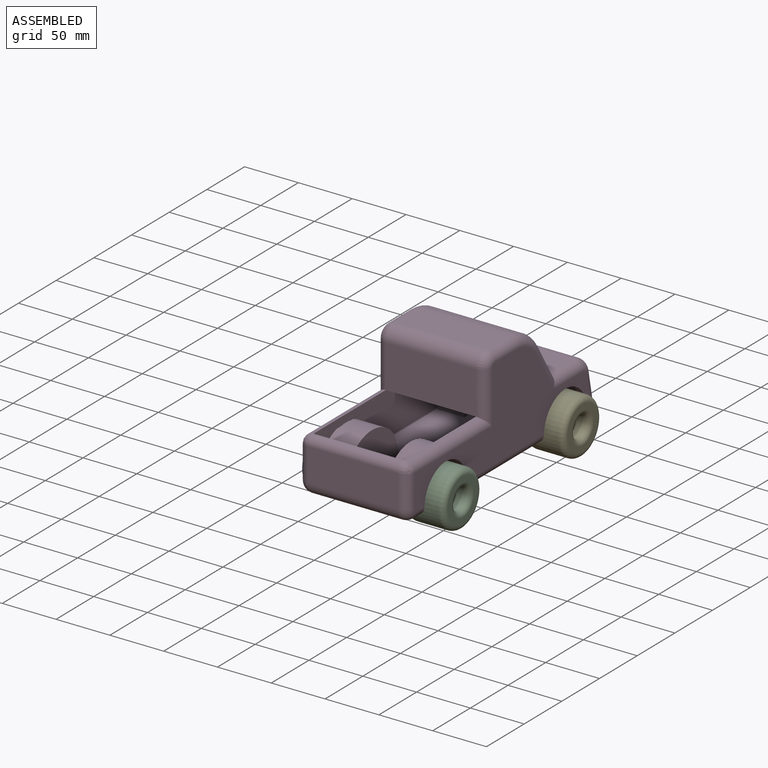
[diagram: assembled view]
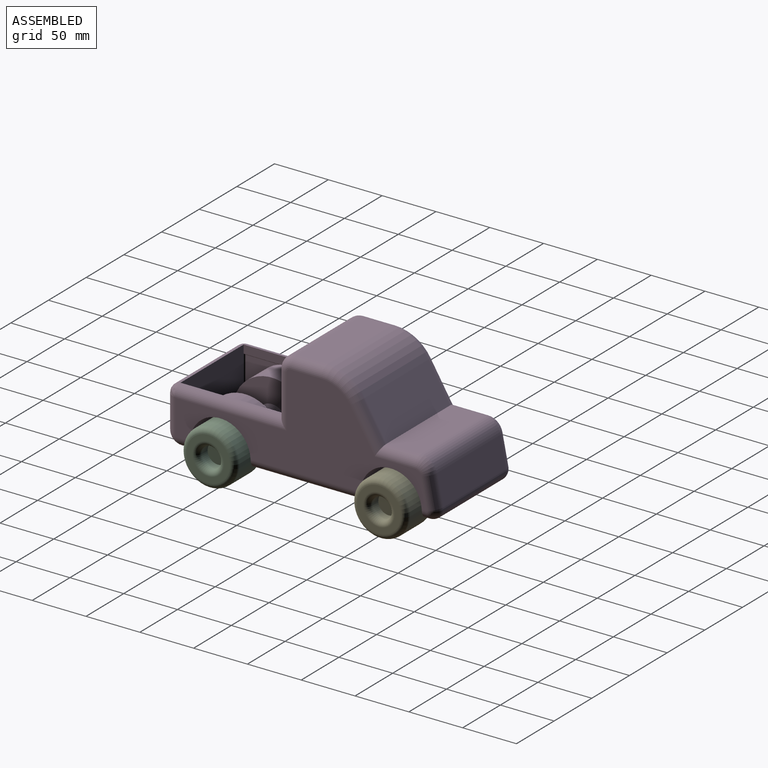
[diagram: assembled view, second angle]
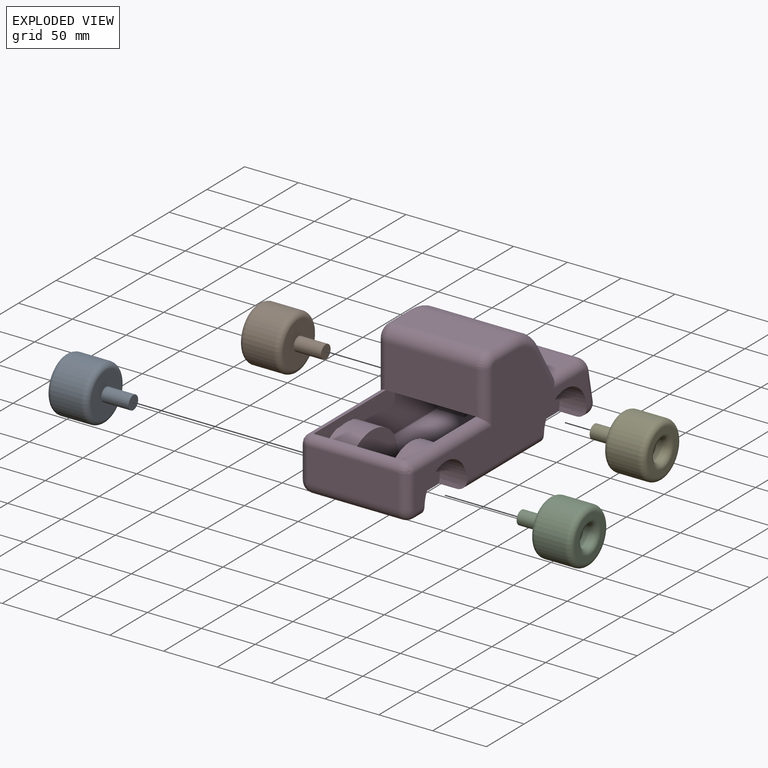
[diagram: exploded view]
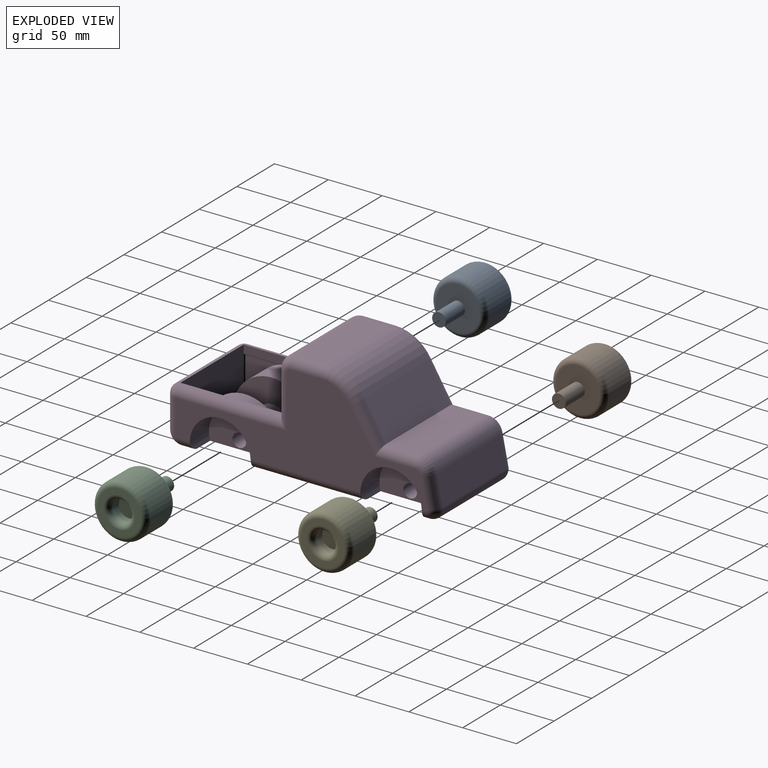
[diagram: exploded view, second angle]
ASSEMBLY  parts=5 mates=4
PART A: 10 faces, bbox 63.5x55x55 mm
  f0: cylinder r=6.35mm len=25.4mm, axis (-1,0,0), area 1013.4mm2, adj f1,f4
  f1: plane 12.7x12.7mm, normal (-1,0,0), area 126.7mm2, adj f0
  f2: cylinder r=25.4mm len=50.8mm, axis (-1,0,0), area 4459mm2, adj f8,f9
  f3: plane 40.64x40.64mm, normal (1,0,0), area 627.1mm2, adj f7,f9
  f4: plane 40.64x40.64mm, normal (-1,0,0), area 1170.5mm2, adj f0,f8
  f5: cylinder r=9.53mm len=19.05mm, axis (1,0,0), area 456mm2, adj f6,f7
  f6: plane 19.05x19.05mm, normal (1,0,0), area 285mm2, adj f5
  f7: torus R=14.61mm, axis (1,0,0), area 570.1mm2, adj f3,f5
  f8: torus R=20.32mm, axis (1,0,0), area 1180.9mm2, adj f2,f4
  f9: torus R=20.32mm, axis (1,0,0), area 1180.9mm2, adj f2,f3
PART B: same geometry as A
PART C: same geometry as A
PART D: 126 faces, bbox 101.6x251.9x106.5 mm
  f0: plane 234.13x85.37mm, normal (-1,0,0), area 8596.9mm2, adj f20,f22,f25,f26,f27,f29,f30,f31
  f1: cylinder r=40.13mm len=83.82mm, axis (-1,0,0), area 3441.9mm2, adj f2,f13,f33,f48
  f2: plane 83.82x29.03mm, normal (0,0,1), area 2433.6mm2, adj f1,f3,f32,f47
  f3: cylinder r=12.28mm len=83.82mm, axis (-1,0,0), area 1617.1mm2, adj f2,f4,f31,f46
  f4: plane 83.82x40.06mm, normal (0,-1,0), area 3358.1mm2, adj f3,f30,f45,f83
  f5: cylinder r=7.7mm len=83.82mm, axis (-1,0,0), area 1014.3mm2, adj f6,f28,f43,f76
  f6: plane 83.82x30.81mm, normal (0,-1,0), area 2582.8mm2, adj f5,f7,f27,f42
  f7: cylinder r=12.28mm len=83.82mm, axis (-1,0,0), area 1617.1mm2, adj f6,f8,f26,f41
  f8: plane 230.21x83.82mm, normal (0,0,-1), area 15669.6mm2, adj f7,f9,f15,f16,f17,f18,f19,f20
  f9: cylinder r=9.41mm len=83.82mm, axis (-1,0,0), area 1396.9mm2, adj f8,f10,f38,f53
  f10: plane 83.82x27.51mm, normal (0,0.98,0.2), area 2352.1mm2, adj f9,f11,f37,f52
  f11: cylinder r=14.98mm len=83.82mm, axis (-1,0,0), area 1722.4mm2, adj f10,f12,f36,f51
  f12: plane 83.82x32.24mm, normal (0,0,1), area 2702.5mm2, adj f11,f13,f35,f50
  f13: plane 83.82x33.11mm, normal (0,0.85,0.52), area 3250.5mm2, adj f1,f12,f34,f49
  f14: plane 234.13x85.37mm, normal (1,0,0), area 8624.5mm2, adj f16,f18,f40,f41,f42,f44,f45,f46
  f15: plane 57.15x36.2mm, normal (1,0,0), area 1586.2mm2, adj f8,f16,f23
  f16: cylinder r=28.57mm len=57.15mm, axis (1,0,0), area 2637.4mm2, adj f8,f14,f15,f54,f56
  f17: plane 56.52x35.88mm, normal (1,0,0), area 1552.9mm2, adj f8,f18,f24
  f18: cylinder r=28.26mm len=56.52mm, axis (1,0,0), area 2612.1mm2, adj f8,f14,f17,f40,f56
  f19: plane 57.15x36.2mm, normal (-1,0,0), area 1586.2mm2, adj f8,f20,f23
  f20: cylinder r=28.57mm len=57.15mm, axis (-1,0,0), area 2637.4mm2, adj f0,f8,f19,f39,f55
  f21: plane 57.15x36.2mm, normal (-1,0,0), area 1586.2mm2, adj f8,f22,f24
  f22: cylinder r=28.57mm len=57.15mm, axis (-1,0,0), area 2637.4mm2, adj f0,f8,f21,f25,f55
  f23: cylinder r=6.35mm len=50.8mm, axis (-1,0,0), area 2026.8mm2, adj f15,f19
  f24: cylinder r=6.35mm len=50.8mm, axis (-1,0,0), area 2026.8mm2, adj f17,f21
  f25: cylinder r=8.89mm len=10.98mm, axis (0,1,0), area 145.5mm2, adj f0,f8,f22,f26
  f26: torus R=3.39mm, axis (1,0,0), area 198.6mm2, adj f0,f7,f25,f27
  f27: cylinder r=8.89mm len=30.81mm, axis (0,0,-1), area 424.3mm2, adj f0,f6,f26,f28
  f28: bspline ~11.03x8.89mm, area 109mm2, adj f5,f27,f29
  f29: cylinder r=8.89mm len=104.65mm, axis (0,-1,0), area 1376.3mm2, adj f0,f28,f30,f77
  f30: cylinder r=8.89mm len=48.95mm, axis (0,0,-1), area 604.6mm2, adj f0,f4,f29,f31
  f31: torus R=3.39mm, axis (1,0,0), area 198.6mm2, adj f0,f3,f30,f32
  f32: cylinder r=8.89mm len=29.03mm, axis (0,-1,0), area 405.4mm2, adj f0,f2,f31,f33
  f33: torus R=31.24mm, axis (1,0,0), area 527.3mm2, adj f0,f1,f32,f34
  f34: cylinder r=8.89mm len=42mm, axis (0,-0.52,0.85), area 566.9mm2, adj f0,f13,f33,f35
  f35: cylinder r=8.89mm len=37.23mm, axis (0,-1,0), area 475.6mm2, adj f0,f12,f34,f36
  f36: torus R=6.09mm, axis (1,0,0), area 225.1mm2, adj f0,f11,f35,f37
  f37: cylinder r=8.89mm len=29.27mm, axis (0,-0.2,0.98), area 391.9mm2, adj f0,f10,f36,f38
  f38: torus R=0.52mm, axis (1,0,0), area 152.9mm2, adj f0,f9,f37,f39
  f39: cylinder r=8.89mm len=8.89mm, axis (0,1,0), area 67.6mm2, adj f0,f8,f20,f38
  f40: cylinder r=8.89mm len=11.31mm, axis (0,-1,0), area 150mm2, adj f8,f14,f18,f41
  f41: torus R=3.39mm, axis (1,0,0), area 198.6mm2, adj f7,f14,f40,f42
  f42: cylinder r=8.89mm len=30.81mm, axis (0,0,1), area 424.3mm2, adj f6,f14,f41,f43
  f43: bspline ~11.03x8.89mm, area 109mm2, adj f5,f42,f44
  f44: cylinder r=8.89mm len=104.65mm, axis (0,1,0), area 1376.3mm2, adj f14,f43,f45,f75
  f45: cylinder r=8.89mm len=48.95mm, axis (0,0,1), area 604.6mm2, adj f4,f14,f44,f46
  f46: torus R=3.39mm, axis (1,0,0), area 198.6mm2, adj f3,f14,f45,f47
  f47: cylinder r=8.89mm len=29.03mm, axis (0,1,0), area 405.4mm2, adj f2,f14,f46,f48
  f48: torus R=31.24mm, axis (1,0,0), area 527.3mm2, adj f1,f14,f47,f49
  f49: cylinder r=8.89mm len=42mm, axis (0,0.52,-0.85), area 566.9mm2, adj f13,f14,f48,f50
  f50: cylinder r=8.89mm len=37.23mm, axis (0,1,0), area 475.6mm2, adj f12,f14,f49,f51
  f51: torus R=6.09mm, axis (1,0,0), area 225.1mm2, adj f11,f14,f50,f52
  f52: cylinder r=8.89mm len=29.27mm, axis (0,0.2,-0.98), area 391.9mm2, adj f10,f14,f51,f53
  f53: torus R=0.52mm, axis (1,0,0), area 152.9mm2, adj f9,f14,f52,f54
  f54: cylinder r=8.89mm len=8.89mm, axis (0,-1,0), area 67.6mm2, adj f8,f14,f16,f53
  f55: cylinder r=8.89mm len=103.67mm, axis (0,1,0), area 1432mm2, adj f0,f8,f20,f22
  f56: cylinder r=8.89mm len=104mm, axis (0,-1,0), area 1436.5mm2, adj f8,f14,f16,f18
  f57: cylinder r=36.2mm len=72.39mm, axis (-1,0,0), area 2867.1mm2, adj f65,f66,f67,f73,f77,f78,f95,f98
  f58: plane 70.93x35.56mm, normal (1,0,0), area 1720.6mm2, adj f59,f61,f65,f87,f88,f90,f94,f96
  f59: cylinder r=36.2mm len=25.4mm, axis (-1,0,0), area 798.2mm2, adj f58,f61,f74,f90,f108,f110
  f60: plane 70.93x35.56mm, normal (-1,0,0), area 1720.6mm2, adj f61,f62,f63,f65,f87,f88,f90,f96
  f61: plane 83.82x27.51mm, normal (0,-0.98,-0.2), area 1584.6mm2, adj f58,f59,f60,f63,f88,f89,f110,f123
  f62: cylinder r=36.2mm len=35.56mm, axis (1,0,0), area 1269.7mm2, adj f60,f65,f69,f72,f90,f125
  f63: cylinder r=36.2mm len=25.4mm, axis (1,0,0), area 798.2mm2, adj f60,f61,f71,f90,f121,f123
  f64: cylinder r=35.88mm len=71.76mm, axis (1,0,0), area 2846.1mm2, adj f65,f66,f70,f72,f75,f92,f93,f111
  f65: plane 130.81x83.82mm, normal (0,0,1), area 8827mm2, adj f57,f58,f60,f62,f64,f93,f94,f95
  f66: plane 83.82x24.55mm, normal (0,0,1), area 992.7mm2, adj f57,f64,f86,f93,f95,f97,f98,f111
  f67: cylinder r=1.27mm len=36.35mm, axis (0,-1,0), area 67.8mm2, adj f57,f77,f78,f101
  f68: cylinder r=1.27mm len=8.56mm, axis (0,-1,0), area 12.3mm2, adj f73,f90,f94,f107
  f69: cylinder r=1.27mm len=8.56mm, axis (0,1,0), area 12.3mm2, adj f62,f72,f90,f120
  f70: cylinder r=1.27mm len=38.33mm, axis (0,1,0), area 70.8mm2, adj f64,f75,f92,f114
  f71: plane 18.05x13.52mm, normal (-1,0,0), area 71.4mm2, adj f63,f121,f122,f123
  f72: plane 136.61x85.37mm, normal (-1,0,0), area 6719.5mm2, adj f62,f64,f69,f115,f116,f117,f118,f119
  f73: plane 135.57x85.37mm, normal (1,0,0), area 6705.6mm2, adj f57,f68,f94,f102,f103,f104,f105,f106
  f74: plane 18.05x13.52mm, normal (1,0,0), area 71.4mm2, adj f59,f108,f109,f110
  f75: plane 103.38x7.62mm, normal (-1,0,0), area 785.7mm2, adj f44,f64,f70,f76,f83,f115,f116
  f76: plane 83.82x7.62mm, normal (0,1,0), area 638.7mm2, adj f5,f75,f77,f84
  f77: plane 103.38x7.62mm, normal (1,0,0), area 782mm2, adj f29,f57,f67,f76,f83,f102,f103
  f78: plane 33.02x30.32mm, normal (1,0,0), area 413.2mm2, adj f57,f67,f98,f99,f100
  f79: cylinder r=32.51mm len=83.82mm, axis (-1,0,0), area 2788.4mm2, adj f80,f91,f106,f119
  f80: plane 83.82x29.03mm, normal (0,0,-1), area 2433.6mm2, adj f79,f81,f105,f118
  f81: cylinder r=4.66mm len=83.82mm, axis (-1,0,0), area 613.9mm2, adj f80,f82,f104,f117
  f82: plane 83.82x40.06mm, normal (0,1,0), area 3358.1mm2, adj f81,f83,f103,f116
  f83: plane 83.82x7.62mm, normal (0,0,-1), area 638.7mm2, adj f4,f75,f77,f82
  f84: cylinder r=0.08mm len=83.82mm, axis (-1,0,0), area 11.1mm2, adj f76,f85,f101,f114
  f85: plane 83.82x30.81mm, normal (0,1,0), area 2582.8mm2, adj f84,f86,f100,f113
  f86: cylinder r=4.66mm len=83.82mm, axis (-1,0,0), area 613.9mm2, adj f66,f85,f99,f112
  f87: plane 35.56x18.97mm, normal (0,0,1), area 674.7mm2, adj f58,f60,f88,f96
  f88: cylinder r=1.79mm len=35.56mm, axis (-1,0,0), area 112.9mm2, adj f58,f60,f61,f87
  f89: cylinder r=7.36mm len=83.82mm, axis (-1,0,0), area 846.5mm2, adj f61,f90,f109,f122
  f90: plane 83.82x36.52mm, normal (0,0,-1), area 2409.6mm2, adj f58,f59,f60,f62,f63,f68,f69,f89
  f91: plane 83.82x36.76mm, normal (0,-0.85,-0.52), area 3609.1mm2, adj f79,f90,f107,f120
  f92: plane 33.02x31.36mm, normal (-1,0,0), area 427.2mm2, adj f64,f70,f111,f112,f113
  f93: plane 71.76x35.88mm, normal (-1,0,0), area 1715.4mm2, adj f64,f65,f66,f97
  f94: cylinder r=36.2mm len=35.56mm, axis (-1,0,0), area 1269.7mm2, adj f58,f65,f68,f73,f90,f124
  f95: plane 72.39x36.2mm, normal (1,0,0), area 1751.3mm2, adj f57,f65,f66,f97
  f96: cylinder r=13.97mm len=35.56mm, axis (-1,0,0), area 1560.7mm2, adj f58,f60,f65,f87
  f97: cylinder r=13.97mm len=35.56mm, axis (-1,0,0), area 1560.7mm2, adj f65,f66,f93,f95
  f98: cylinder r=1.27mm len=2.35mm, axis (0,1,0), area 4.7mm2, adj f57,f66,f78,f99
  f99: torus R=3.39mm, axis (1,0,0), area 13.2mm2, adj f78,f86,f98,f100
  f100: cylinder r=1.27mm len=30.81mm, axis (0,0,-1), area 60.6mm2, adj f78,f85,f99,f101
  f101: bspline ~1.45x1.27mm, area 0.1mm2, adj f67,f84,f100
  f102: cylinder r=1.27mm len=54.8mm, axis (0,-1,0), area 103.8mm2, adj f57,f73,f77,f103
  f103: cylinder r=1.27mm len=48.95mm, axis (0,0,-1), area 96mm2, adj f73,f77,f82,f102,f104
  f104: torus R=3.39mm, axis (1,0,0), area 13.2mm2, adj f73,f81,f103,f105
  f105: cylinder r=1.27mm len=29.03mm, axis (0,-1,0), area 57.9mm2, adj f73,f80,f104,f106
  f106: torus R=31.24mm, axis (1,0,0), area 65.4mm2, adj f73,f79,f105,f107
  f107: cylinder r=1.27mm len=38.03mm, axis (0,-0.52,0.85), area 86.4mm2, adj f68,f73,f91,f106
  f108: cylinder r=1.27mm len=15.17mm, axis (0,-1,0), area 26.4mm2, adj f59,f74,f90,f109
  f109: torus R=6.09mm, axis (1,0,0), area 18.9mm2, adj f74,f89,f108,f110
  f110: cylinder r=1.27mm len=12.17mm, axis (0,-0.2,0.98), area 21.7mm2, adj f59,f61,f74,f109
  f111: cylinder r=1.27mm len=2.66mm, axis (0,-1,0), area 5.3mm2, adj f64,f66,f92,f112
  f112: torus R=3.39mm, axis (1,0,0), area 13.2mm2, adj f86,f92,f111,f113
  f113: cylinder r=1.27mm len=30.81mm, axis (0,0,1), area 60.6mm2, adj f85,f92,f112,f114
  f114: bspline ~1.45x1.27mm, area 0.1mm2, adj f70,f84,f113
  f115: cylinder r=1.27mm len=56.79mm, axis (0,1,0), area 106.8mm2, adj f64,f72,f75,f116
  f116: cylinder r=1.27mm len=48.95mm, axis (0,0,1), area 96mm2, adj f72,f75,f82,f115,f117
  f117: torus R=3.39mm, axis (1,0,0), area 13.2mm2, adj f72,f81,f116,f118
  f118: cylinder r=1.27mm len=29.03mm, axis (0,1,0), area 57.9mm2, adj f72,f80,f117,f119
  f119: torus R=31.24mm, axis (1,0,0), area 65.4mm2, adj f72,f79,f118,f120
  f120: cylinder r=1.27mm len=38.03mm, axis (0,0.52,-0.85), area 86.4mm2, adj f69,f72,f91,f119
  f121: cylinder r=1.27mm len=15.17mm, axis (0,1,0), area 26.4mm2, adj f63,f71,f90,f122
  f122: torus R=6.09mm, axis (1,0,0), area 18.9mm2, adj f71,f89,f121,f123
  f123: cylinder r=1.27mm len=12.17mm, axis (0,0.2,-0.98), area 21.7mm2, adj f61,f63,f71,f122
  f124: cylinder r=1.27mm len=86.4mm, axis (0,1,0), area 172.3mm2, adj f57,f65,f73,f94
  f125: cylinder r=1.27mm len=86.72mm, axis (0,-1,0), area 173mm2, adj f62,f64,f65,f72
PART E: same geometry as A
PLACE A rot(axis=(0,-0.64,0.76),180deg) t=(46.97,50.8,7.62)mm
PLACE B rot(axis=(0,-1,-0.08),180deg) t=(46.43,209.55,7.62)mm
PLACE C rot(axis=(-1,0,0),10.9deg) t=(53.91,50.8,7.62)mm
PLACE D at identity fixed
PLACE E rot(axis=(1,0,0),62.4deg) t=(54.1,209.55,7.62)mm
MATE cylindrical D.f18 <-> C.f0  axis (1,0,0) through (76.2,50.8,7.62)mm
MATE cylindrical E.f0 <-> D.f16  axis (-1,0,0) through (54.1,209.55,7.62)mm
MATE cylindrical A.f0 <-> D.f18  axis (1,0,0) through (46.97,50.8,7.62)mm
MATE cylindrical D.f16 <-> B.f0  axis (-1,0,0) through (25.4,209.55,7.62)mm
